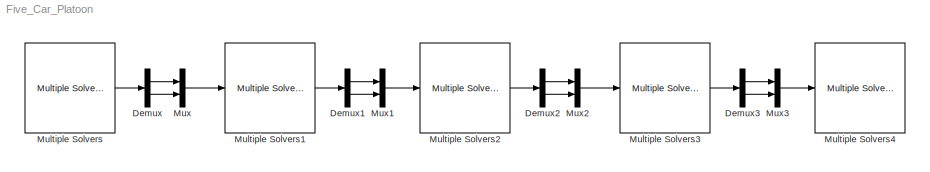
MODEL Five_Car_Platoon
KIND model
BLOCK [Demux] Demux
  DisplayOption = bar
  Outputs = 2
  Ports = [1, 2]
  SID = 61
BLOCK [Demux] Demux1
  DisplayOption = bar
  Outputs = 2
  Ports = [1, 2]
  SID = 71
BLOCK [Demux] Demux2
  DisplayOption = bar
  Outputs = 2
  Ports = [1, 2]
  SID = 74
BLOCK [Demux] Demux3
  DisplayOption = bar
  Outputs = 2
  Ports = [1, 2]
  SID = 75
BLOCK [Reference] Multiple Solvers  REF=Solver_SF/Multiple Solvers
  Ports = [0, 1]
  Priority = 1
  Run_RTs = off
  SID = 69
  SIMFILE = <path>
  SourceBlock = Solver_SF/Multiple Solvers
  SourceType = Vehicle math model library
  StopMode_ind = Vehicle Model
  iVehicle = 1
  vs_scx = on
  vs_state_ind = Run
BLOCK [Reference] Multiple Solvers1  REF=Solver_SF/Multiple Solvers
  Ports = [1, 1]
  Priority = 1
  Run_RTs = off
  SID = 70
  SIMFILE = <path>
  SourceBlock = Solver_SF/Multiple Solvers
  SourceType = Vehicle math model library
  StopMode_ind = Vehicle Model
  iVehicle = 2
  vs_scx = on
  vs_state_ind = Run
BLOCK [Reference] Multiple Solvers2  REF=Solver_SF/Multiple Solvers
  Ports = [1, 1]
  Priority = 1
  Run_RTs = off
  SID = 79
  SIMFILE = <path>
  SourceBlock = Solver_SF/Multiple Solvers
  SourceType = Vehicle math model library
  StopMode_ind = Vehicle Model
  iVehicle = 3
  vs_scx = on
  vs_state_ind = Run
BLOCK [Reference] Multiple Solvers3  REF=Solver_SF/Multiple Solvers
  Ports = [1, 1]
  Priority = 1
  Run_RTs = off
  SID = 76
  SIMFILE = <path>
  SourceBlock = Solver_SF/Multiple Solvers
  SourceType = Vehicle math model library
  StopMode_ind = Vehicle Model
  iVehicle = 4
  vs_scx = on
  vs_state_ind = Run
BLOCK [Reference] Multiple Solvers4  REF=Solver_SF/Multiple Solvers
  Ports = [1, 1]
  Priority = 1
  Run_RTs = off
  SID = 80
  SIMFILE = <path>
  SourceBlock = Solver_SF/Multiple Solvers
  SourceType = Vehicle math model library
  StopMode_ind = Vehicle Model
  iVehicle = 5
  vs_scx = on
  vs_state_ind = Run
BLOCK [Mux] Mux
  DisplayOption = bar
  Inputs = 2
  Ports = [2, 1]
  SID = 62
BLOCK [Mux] Mux1
  DisplayOption = bar
  Inputs = 2
  Ports = [2, 1]
  SID = 73
BLOCK [Mux] Mux2
  DisplayOption = bar
  Inputs = 2
  Ports = [2, 1]
  SID = 77
BLOCK [Mux] Mux3
  DisplayOption = bar
  Inputs = 2
  Ports = [2, 1]
  SID = 78
LINE Demux1:1 -> Mux1:1
LINE Demux1:2 -> Mux1:2
LINE Demux2:1 -> Mux2:1
LINE Demux2:2 -> Mux2:2
LINE Demux3:1 -> Mux3:1
LINE Demux3:2 -> Mux3:2
LINE Demux:1 -> Mux:1
LINE Demux:2 -> Mux:2
LINE Multiple Solvers1:1 -> Demux1:1
LINE Multiple Solvers2:1 -> Demux2:1
LINE Multiple Solvers3:1 -> Demux3:1
LINE Multiple Solvers:1 -> Demux:1
LINE Mux1:1 -> Multiple Solvers2:1
LINE Mux2:1 -> Multiple Solvers3:1
LINE Mux3:1 -> Multiple Solvers4:1
LINE Mux:1 -> Multiple Solvers1:1
note: 5 file-system paths scrubbed to <path> (not preserved elsewhere — flat text is the only slx artifact)
